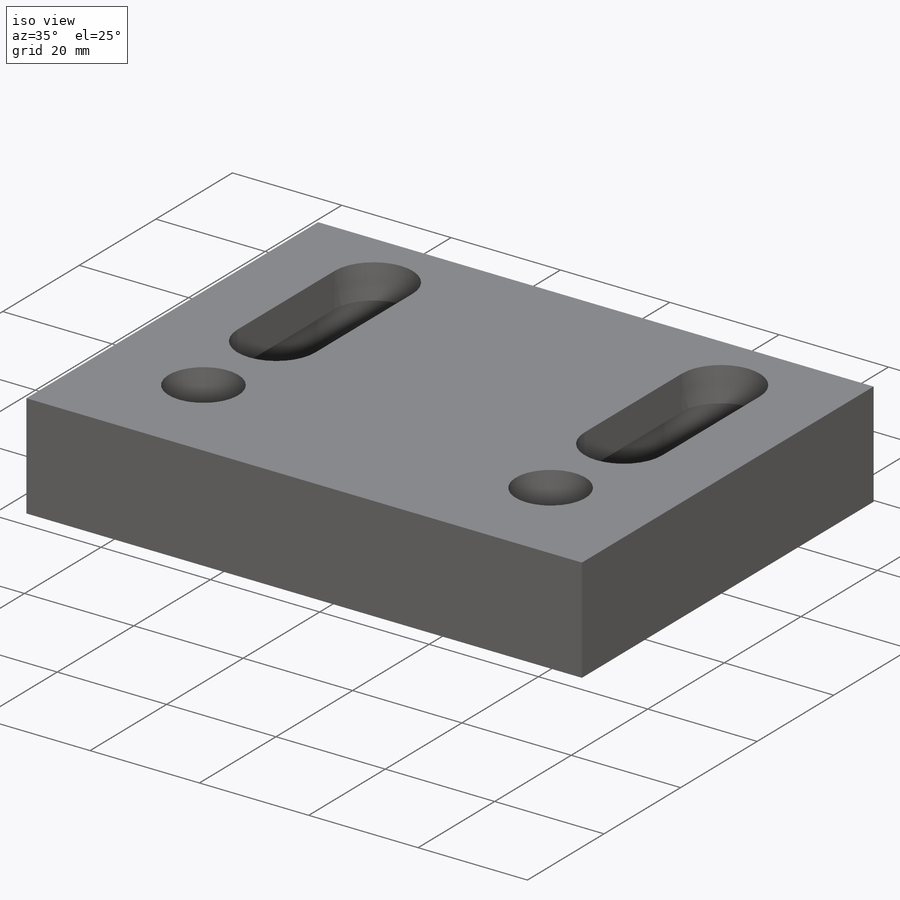
[diagram: iso view]
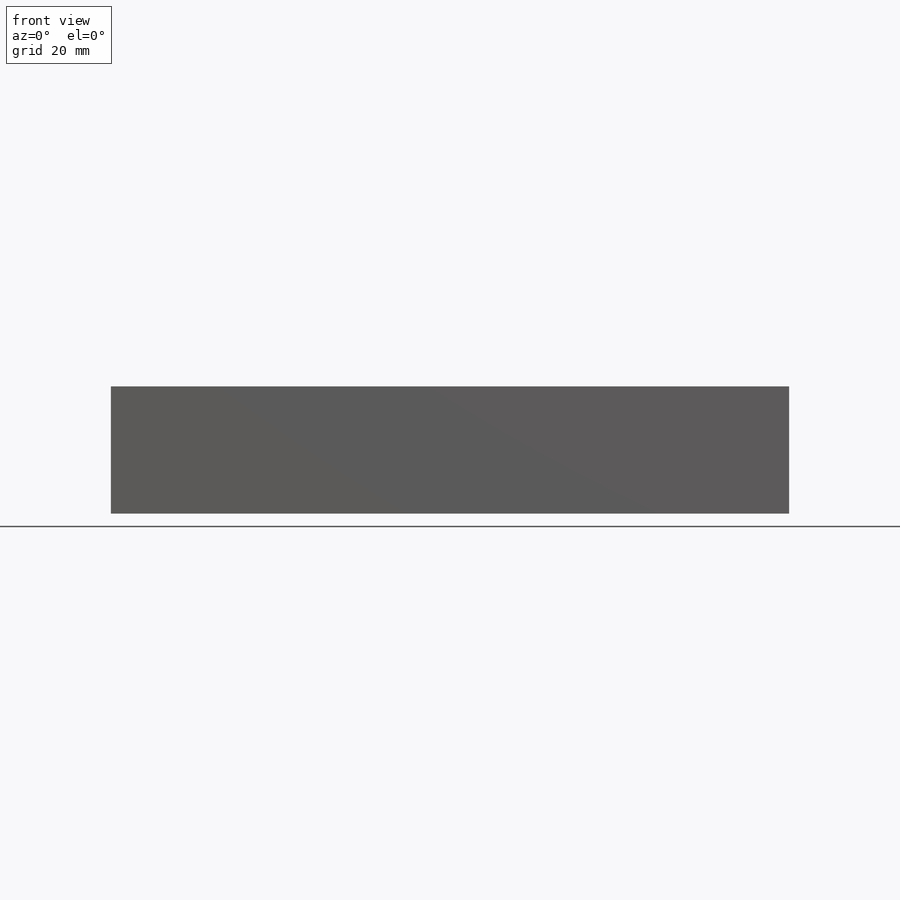
[diagram: front view]
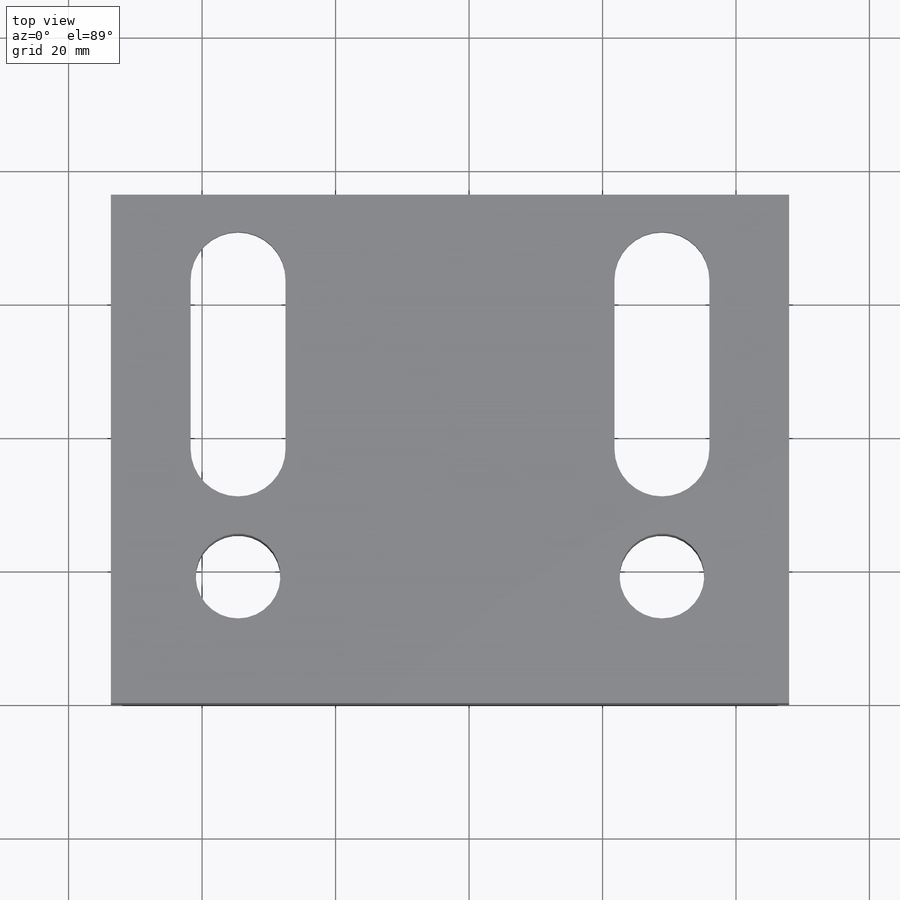
[diagram: top view]
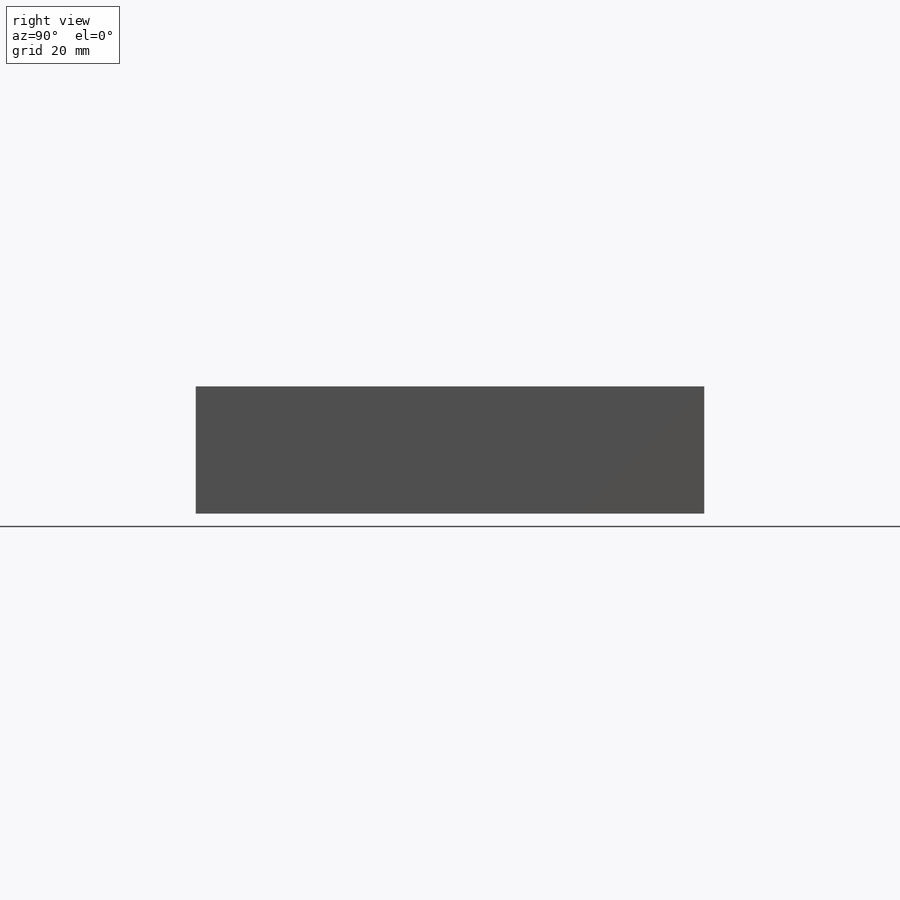
[diagram: right view]
SOLIDWORKS PART (.sldprt)
format: sldprt  version: not decoded by parser v0  size: 351,744 bytes
history: native  units: mm
features: sketch x7, plane x4, cut_extrude x4, material x1, extrude x1, hole x1 (+11 scaffold rows collapsed)
feature tree (29):
  scaffold x11  (default folders/planes/origin — collapsed)
  material  "AISI 1018 Steel Cold Rolled"
  plane  "Plane1"
  plane  "Plane2"
  plane  "Plane3"
  sketch  "Sketch1"  dims[c1.D3=14.224mm c1.D7=~14.810618mm c1.D1=76.2mm c1.D2=114.3mm c1.D4=25.4mm c1.D5=25.4mm c1.D6=25.4mm c2.D7=63.5mm c2.D8=25.4mm]
  extrude  "Base-Extrude"  Depth=19.05mm
  hole  "1/2-20 Tapped Hole1"  Diameter=12.7mm Depth=19.05mm
  sketch  "Sketch3"  dims[c1.D1=19.05mm c1.D2=19.05mm c1.D3=38.1mm c1.D4=25.4mm c2.D3=88.9mm c2.D5=63.5mm]
  sketch  "Sketch2"  dims[hole-wizard template sketch: 60 standard entries collapsed; hole parameters kept: c18.Thru Tap Drill Depth=19.05mm]
  plane  "Plane4"  Offset=133.35mm
  sketch  "Sketch4"  dims[D1=3.2131mm]
  cut_extrude  "Cut-Extrude1"  Depth=12.7mm
  sketch  "Sketch5"  dims[D1=3.2131mm]
  cut_extrude  "Cut-Extrude2"  Depth=12.7mm
  sketch  "Sketch7"  dims[D1=6.35mm D2=6.35mm]
  sketch  "Sketch8"  dims[D1=6.35mm]
  cut_extrude  "Cut-Extrude3"  [1 undecoded]
  cut_extrude  "Cut-Extrude4"  [1 undecoded]
decode coverage: 11 of 13 modeling features carry decoded parameters
note: ~ marks probable driven/reference dimensions
note: 2 parameter values undecoded
note: suppression state not decoded; provenance and decode notes live in map.json
